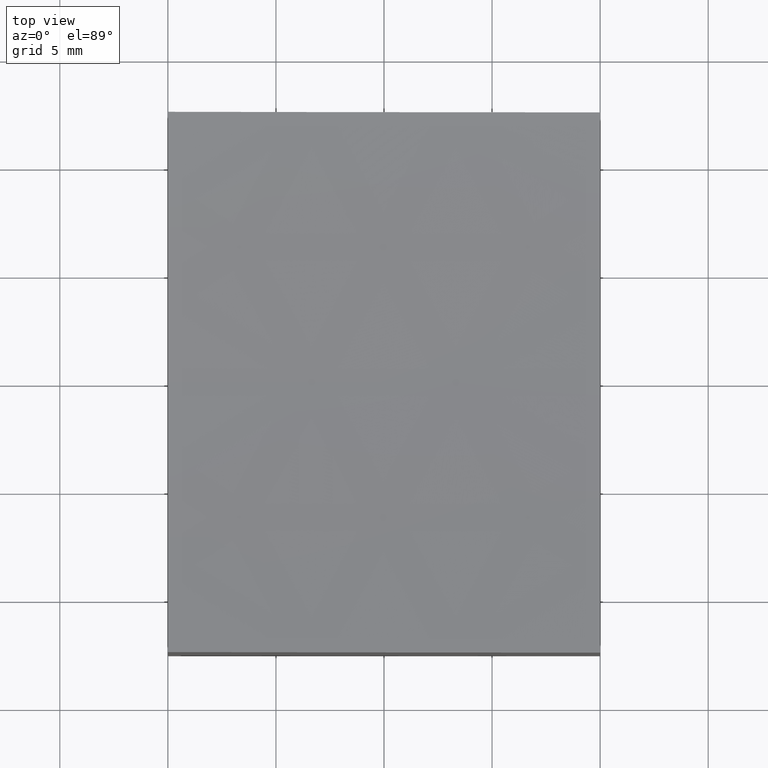
[diagram: clean part render]
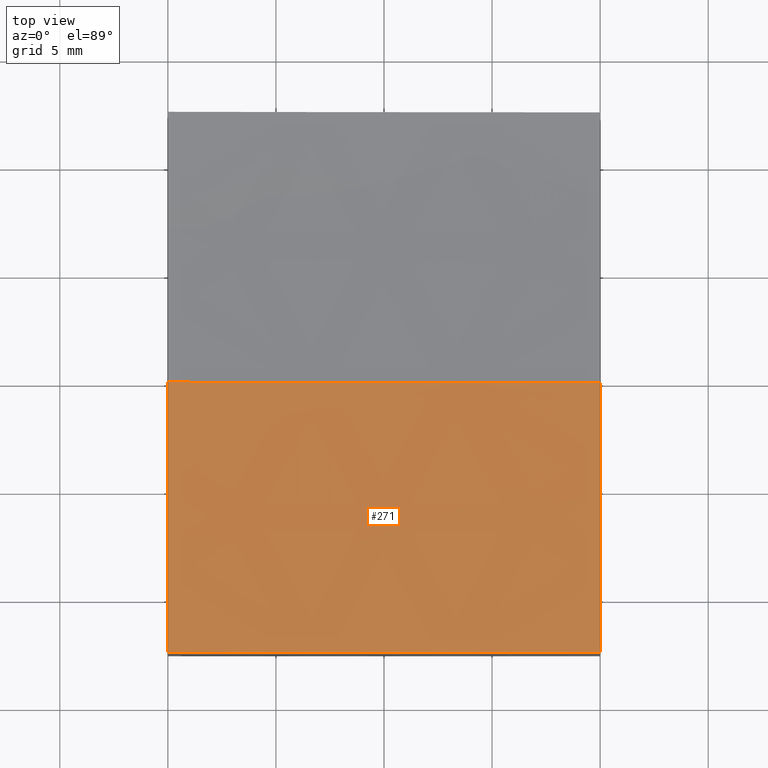
[diagram: same view with one face highlighted and labeled with its STEP entity id]
A machine part, top view. The second image highlights one B-rep face of the part: STEP entity #271.
In plain terms, the highlighted spherical surface has radius 200 mm.
Its self-contained STEP definition (entity closure, byte-faithful):
#6 = DIRECTION ( 'NONE',  ( 1.000000000000000000, 0.000000000000000000, 0.000000000000000000 ) ) ;
#10 = ORIENTED_EDGE ( 'NONE', *, *, #145, .F. ) ;
#11 = CARTESIAN_POINT ( 'NONE',  ( 10.00000000000000178, -12.50000000000000000, -0.5463605280738026426 ) ) ;
#23 = CIRCLE ( 'NONE', #217, 200.0000000000000000 ) ;
#39 = CIRCLE ( 'NONE', #249, 199.9374902313220730 ) ;
#57 = DIRECTION ( 'NONE',  ( 0.000000000000000000, 0.000000000000000000, 1.000000000000000000 ) ) ;
#58 = DIRECTION ( 'NONE',  ( -1.000000000000000000, -1.738121566355747637E-16, 0.000000000000000000 ) ) ;
#66 = ORIENTED_EDGE ( 'NONE', *, *, #116, .F. ) ;
#68 = VERTEX_POINT ( 'NONE', #76 ) ;
#76 = CARTESIAN_POINT ( 'NONE',  ( 10.00000000000000178, -6.123233995736765296E-16, -0.9374902313220578876 ) ) ;
#83 = EDGE_CURVE ( 'NONE', #240, #68, #23, .T. ) ;
#88 = VERTEX_POINT ( 'NONE', #11 ) ;
#92 = DIRECTION ( 'NONE',  ( 0.000000000000000000, 0.000000000000000000, -1.000000000000000000 ) ) ;
#96 = CIRCLE ( 'NONE', #236, 199.6089927833914146 ) ;
#99 = CARTESIAN_POINT ( 'NONE',  ( 15.00000000000002842, -12.49999999999999822, 199.0000000000000000 ) ) ;
#116 = EDGE_CURVE ( 'NONE', #68, #88, #39, .T. ) ;
#123 = DIRECTION ( 'NONE',  ( 0.000000000000000000, -1.000000000000000000, -0.000000000000000000 ) ) ;
#124 = DIRECTION ( 'NONE',  ( -1.734723475976807094E-16, 1.000000000000000000, 0.000000000000000000 ) ) ;
#127 = VERTEX_POINT ( 'NONE', #183 ) ;
#136 = CARTESIAN_POINT ( 'NONE',  ( -9.999999999999998224, 0.000000000000000000, 199.0000000000000000 ) ) ;
#142 = AXIS2_PLACEMENT_3D ( 'NONE', #252, #123, #165 ) ;
#145 = EDGE_CURVE ( 'NONE', #127, #240, #190, .T. ) ;
#163 = CARTESIAN_POINT ( 'NONE',  ( 10.00000000000000178, 0.000000000000000000, 199.0000000000000000 ) ) ;
#165 = DIRECTION ( 'NONE',  ( 1.000000000000000000, 0.000000000000000000, -1.387778780781445676E-16 ) ) ;
#171 = AXIS2_PLACEMENT_3D ( 'NONE', #136, #6, #92 ) ;
#183 = CARTESIAN_POINT ( 'NONE',  ( -10.00000000000000000, -12.50000000000000355, 0.9627560280642266655 ) ) ;
#186 = DIRECTION ( 'NONE',  ( 1.224646799147353207E-16, -1.000000000000000000, -1.487096486582537186E-32 ) ) ;
#190 = CIRCLE ( 'NONE', #171, 198.4313483298443259 ) ;
#198 = EDGE_CURVE ( 'NONE', #88, #127, #96, .T. ) ;
#201 = ORIENTED_EDGE ( 'NONE', *, *, #83, .F. ) ;
#202 = CARTESIAN_POINT ( 'NONE',  ( 15.00000000000002665, 0.000000000000000000, 199.0000000000000000 ) ) ;
#206 = ORIENTED_EDGE ( 'NONE', *, *, #198, .F. ) ;
#209 = FACE_OUTER_BOUND ( 'NONE', #219, .T. ) ;
#211 = CARTESIAN_POINT ( 'NONE',  ( -9.999999999999996447, -3.061616997868382648E-15, 0.5686516701556842968 ) ) ;
#217 = AXIS2_PLACEMENT_3D ( 'NONE', #202, #186, #244 ) ;
#219 = EDGE_LOOP ( 'NONE', ( #201, #10, #206, #66 ) ) ;
#236 = AXIS2_PLACEMENT_3D ( 'NONE', #99, #124, #58 ) ;
#240 = VERTEX_POINT ( 'NONE', #211 ) ;
#244 = DIRECTION ( 'NONE',  ( 1.000000000000000000, 1.224646799147353207E-16, 0.000000000000000000 ) ) ;
#248 = DIRECTION ( 'NONE',  ( -1.000000000000000000, 0.000000000000000000, 0.000000000000000000 ) ) ;
#249 = AXIS2_PLACEMENT_3D ( 'NONE', #163, #248, #57 ) ;
#252 = CARTESIAN_POINT ( 'NONE',  ( 15.00000000000002665, 0.000000000000000000, 199.0000000000000000 ) ) ;
#271 = ADVANCED_FACE ( 'NONE', ( #209 ), #273, .F. ) ;
#273 = SPHERICAL_SURFACE ( 'NONE', #142, 200.0000000000000000 ) ;